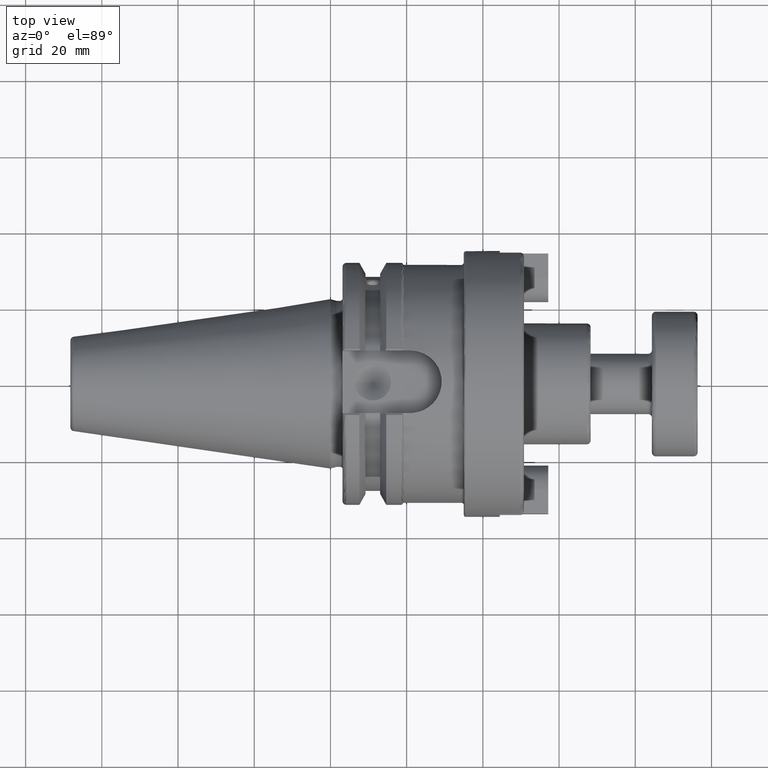
[diagram: clean part render]
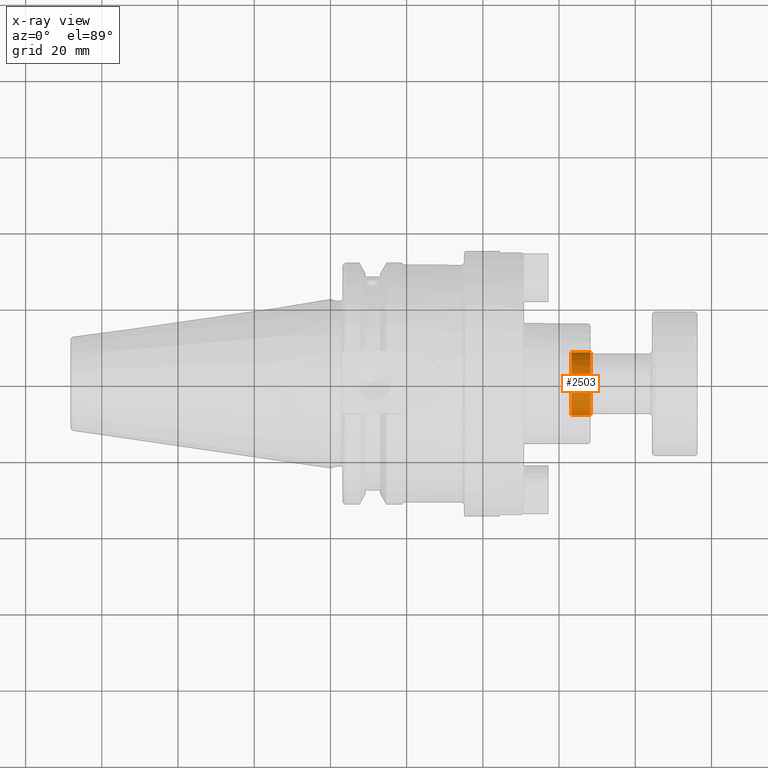
[diagram: x-ray — body ghosted, one internal face saturated and labeled with its STEP entity id]
A machine part, top view, then the same camera in x-ray: the body is ghosted and one INTERNAL B-rep face — a face not visible from any outside direction — is saturated and labeled: STEP entity #2503.
In plain terms, the highlighted cylindrical surface (bore or boss wall) has radius 8.25 mm, axis along (1, 0, 0).
Its self-contained STEP definition (entity closure, byte-faithful):
#123=CYLINDRICAL_SURFACE('',#2796,8.25);
#237=CIRCLE('',#2791,8.25);
#240=CIRCLE('',#2797,8.25);
#365=FACE_OUTER_BOUND('',#521,.T.);
#521=EDGE_LOOP('',(#1807,#1808,#1809,#1810));
#692=LINE('',#4207,#853);
#853=VECTOR('',#3219,8.25);
#1083=VERTEX_POINT('',#4191);
#1088=VERTEX_POINT('',#4206);
#1356=EDGE_CURVE('',#1083,#1083,#237,.T.);
#1363=EDGE_CURVE('',#1083,#1088,#692,.T.);
#1364=EDGE_CURVE('',#1088,#1088,#240,.T.);
#1807=ORIENTED_EDGE('',*,*,#1356,.T.);
#1808=ORIENTED_EDGE('',*,*,#1363,.T.);
#1809=ORIENTED_EDGE('',*,*,#1364,.F.);
#1810=ORIENTED_EDGE('',*,*,#1363,.F.);
#2503=ADVANCED_FACE('',(#365),#123,.F.);
#2791=AXIS2_PLACEMENT_3D('',#4192,#3203,#3204);
#2796=AXIS2_PLACEMENT_3D('',#4205,#3217,#3218);
#2797=AXIS2_PLACEMENT_3D('',#4208,#3220,#3221);
#3203=DIRECTION('center_axis',(1.,0.,0.));
#3204=DIRECTION('ref_axis',(0.,0.,-1.));
#3217=DIRECTION('center_axis',(1.,0.,0.));
#3218=DIRECTION('ref_axis',(0.,1.,0.));
#3219=DIRECTION('',(-1.,0.,0.));
#3220=DIRECTION('center_axis',(1.,0.,0.));
#3221=DIRECTION('ref_axis',(0.,0.,-1.));
#4191=CARTESIAN_POINT('',(68.28,-8.25,-1.01033360929657E-15));
#4192=CARTESIAN_POINT('Origin',(68.28,0.,0.));
#4205=CARTESIAN_POINT('Origin',(65.78,0.,0.));
#4206=CARTESIAN_POINT('',(63.28,-8.25,-1.01033360929657E-15));
#4207=CARTESIAN_POINT('',(65.78,-8.25,-1.01033360929657E-15));
#4208=CARTESIAN_POINT('Origin',(63.28,0.,0.));